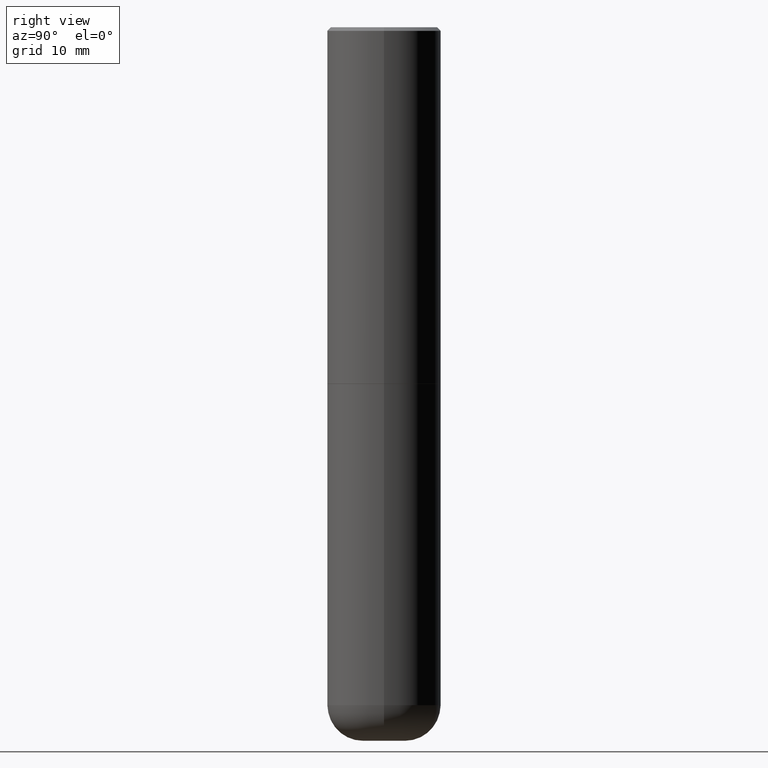
[diagram: clean part render]
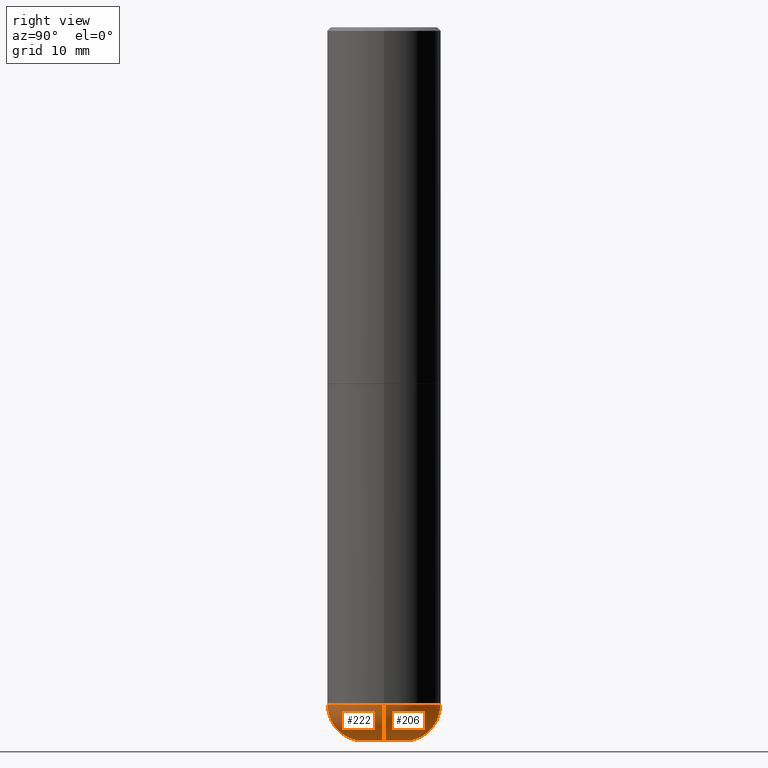
[diagram: same view with one multi-face feature highlighted, each face labeled with its STEP entity id]
A machine part, right view. The highlighted faces form ONE feature: a constant-radius fillet chain: 2 tangent blend faces with common blend radius 5.0013 mm. The faces share edges in the B-rep.
Their STEP definitions:
[1] entity #206 (Torus):
#11 = CARTESIAN_POINT ( 'NONE',  ( -0.1180500000000000438, -1.186390067029574163E-14, -3.937000000000000277 ) ) ;
#14 = CARTESIAN_POINT ( 'NONE',  ( 0.1180500000000000160, -1.388282809950811403E-14, -3.740100000000000424 ) ) ;
#33 = VERTEX_POINT ( 'NONE', #392 ) ;
#54 = ORIENTED_EDGE ( 'NONE', *, *, #179, .T. ) ;
#64 = ORIENTED_EDGE ( 'NONE', *, *, #87, .T. ) ;
#86 = VERTEX_POINT ( 'NONE', #11 ) ;
#87 = EDGE_CURVE ( 'NONE', #86, #33, #101, .T. ) ;
#91 = EDGE_CURVE ( 'NONE', #153, #242, #122, .T. ) ;
#101 = CIRCLE ( 'NONE', #344, 0.1968999999999998529 ) ;
#103 = DIRECTION ( 'NONE',  ( -1.000000000000000000, 7.105427357600997914E-15, 0.000000000000000000 ) ) ;
#106 = DIRECTION ( 'NONE',  ( 1.000000000000000000, -6.982962677686270655E-15, 0.000000000000000000 ) ) ;
#112 = DIRECTION ( 'NONE',  ( 1.000000000000000000, -6.982962677686266711E-15, 4.883557194083112901E-29 ) ) ;
#120 = CARTESIAN_POINT ( 'NONE',  ( 9.146297882013029477E-29, -1.305848935540725085E-14, -3.740100000000000424 ) ) ;
#122 = CIRCLE ( 'NONE', #145, 0.1968999999999998529 ) ;
#129 = EDGE_LOOP ( 'NONE', ( #54, #64, #189, #355 ) ) ;
#135 = CARTESIAN_POINT ( 'NONE',  ( -0.1180500000000000160, -1.221969365584245109E-14, -3.740100000000000424 ) ) ;
#138 = DIRECTION ( 'NONE',  ( -6.982962677686266711E-15, -1.000000000000000000, 3.491481338843145583E-15 ) ) ;
#145 = AXIS2_PLACEMENT_3D ( 'NONE', #14, #138, #106 ) ;
#153 = VERTEX_POINT ( 'NONE', #181 ) ;
#173 = CARTESIAN_POINT ( 'NONE',  ( 9.146297882013029477E-29, -1.305848935540725085E-14, -3.740100000000000424 ) ) ;
#179 = EDGE_CURVE ( 'NONE', #153, #86, #368, .T. ) ;
#181 = CARTESIAN_POINT ( 'NONE',  ( 0.1180500000000000438, -1.457030077512632659E-14, -3.937000000000000277 ) ) ;
#189 = ORIENTED_EDGE ( 'NONE', *, *, #318, .F. ) ;
#202 = TOROIDAL_SURFACE ( 'NONE', #304, 0.1180500000000000160, 0.1968999999999998807 ) ;
#206 = ADVANCED_FACE ( 'NONE', ( #401 ), #202, .T. ) ;
#242 = VERTEX_POINT ( 'NONE', #375 ) ;
#297 = AXIS2_PLACEMENT_3D ( 'NONE', #402, #346, #345 ) ;
#304 = AXIS2_PLACEMENT_3D ( 'NONE', #173, #407, #112 ) ;
#318 = EDGE_CURVE ( 'NONE', #242, #33, #400, .T. ) ;
#319 = DIRECTION ( 'NONE',  ( -2.445468806185136597E-29, 3.491481338843145583E-15, 1.000000000000000000 ) ) ;
#338 = AXIS2_PLACEMENT_3D ( 'NONE', #120, #319, #352 ) ;
#344 = AXIS2_PLACEMENT_3D ( 'NONE', #135, #397, #103 ) ;
#345 = DIRECTION ( 'NONE',  ( 1.000000000000000000, -6.982962677686258822E-15, 0.000000000000000000 ) ) ;
#346 = DIRECTION ( 'NONE',  ( -2.445468806185136597E-29, 3.491481338843145583E-15, 1.000000000000000000 ) ) ;
#352 = DIRECTION ( 'NONE',  ( 1.000000000000000000, -6.982962677686263555E-15, 0.000000000000000000 ) ) ;
#355 = ORIENTED_EDGE ( 'NONE', *, *, #91, .F. ) ;
#368 = CIRCLE ( 'NONE', #297, 0.1180500000000000438 ) ;
#375 = CARTESIAN_POINT ( 'NONE',  ( 0.3149499999999999522, -1.525777345074454073E-14, -3.740100000000000424 ) ) ;
#392 = CARTESIAN_POINT ( 'NONE',  ( -0.3149499999999999522, -1.082063500913081645E-14, -3.740100000000000424 ) ) ;
#397 = DIRECTION ( 'NONE',  ( 7.105427357601001859E-15, 1.000000000000000000, -3.491481338843145583E-15 ) ) ;
#400 = CIRCLE ( 'NONE', #338, 0.3149500000000000077 ) ;
#401 = FACE_OUTER_BOUND ( 'NONE', #129, .T. ) ;
#402 = CARTESIAN_POINT ( 'NONE',  ( 9.627810689950883669E-29, -1.374596203102546341E-14, -3.937000000000000277 ) ) ;
#407 = DIRECTION ( 'NONE',  ( -2.445468806185136597E-29, 3.491481338843145583E-15, 1.000000000000000000 ) ) ;
[2] entity #222 (Torus):
#11 = CARTESIAN_POINT ( 'NONE',  ( -0.1180500000000000438, -1.186390067029574163E-14, -3.937000000000000277 ) ) ;
#14 = CARTESIAN_POINT ( 'NONE',  ( 0.1180500000000000160, -1.388282809950811403E-14, -3.740100000000000424 ) ) ;
#24 = EDGE_CURVE ( 'NONE', #86, #153, #233, .T. ) ;
#25 = CARTESIAN_POINT ( 'NONE',  ( 9.146297882013029477E-29, -1.305848935540725085E-14, -3.740100000000000424 ) ) ;
#26 = EDGE_LOOP ( 'NONE', ( #150, #160, #295, #218 ) ) ;
#33 = VERTEX_POINT ( 'NONE', #392 ) ;
#36 = AXIS2_PLACEMENT_3D ( 'NONE', #25, #379, #183 ) ;
#50 = CARTESIAN_POINT ( 'NONE',  ( 9.146297882013029477E-29, -1.305848935540725085E-14, -3.740100000000000424 ) ) ;
#86 = VERTEX_POINT ( 'NONE', #11 ) ;
#87 = EDGE_CURVE ( 'NONE', #86, #33, #101, .T. ) ;
#91 = EDGE_CURVE ( 'NONE', #153, #242, #122, .T. ) ;
#101 = CIRCLE ( 'NONE', #344, 0.1968999999999998529 ) ;
#103 = DIRECTION ( 'NONE',  ( -1.000000000000000000, 7.105427357600997914E-15, 0.000000000000000000 ) ) ;
#106 = DIRECTION ( 'NONE',  ( 1.000000000000000000, -6.982962677686270655E-15, 0.000000000000000000 ) ) ;
#113 = DIRECTION ( 'NONE',  ( 1.000000000000000000, -6.982962677686266711E-15, 4.883557194083112901E-29 ) ) ;
#122 = CIRCLE ( 'NONE', #145, 0.1968999999999998529 ) ;
#131 = CARTESIAN_POINT ( 'NONE',  ( 9.627810689950883669E-29, -1.374596203102546341E-14, -3.937000000000000277 ) ) ;
#135 = CARTESIAN_POINT ( 'NONE',  ( -0.1180500000000000160, -1.221969365584245109E-14, -3.740100000000000424 ) ) ;
#138 = DIRECTION ( 'NONE',  ( -6.982962677686266711E-15, -1.000000000000000000, 3.491481338843145583E-15 ) ) ;
#145 = AXIS2_PLACEMENT_3D ( 'NONE', #14, #138, #106 ) ;
#150 = ORIENTED_EDGE ( 'NONE', *, *, #87, .F. ) ;
#153 = VERTEX_POINT ( 'NONE', #181 ) ;
#160 = ORIENTED_EDGE ( 'NONE', *, *, #24, .T. ) ;
#181 = CARTESIAN_POINT ( 'NONE',  ( 0.1180500000000000438, -1.457030077512632659E-14, -3.937000000000000277 ) ) ;
#183 = DIRECTION ( 'NONE',  ( 1.000000000000000000, -6.982962677686263555E-15, 0.000000000000000000 ) ) ;
#187 = AXIS2_PLACEMENT_3D ( 'NONE', #50, #313, #113 ) ;
#218 = ORIENTED_EDGE ( 'NONE', *, *, #361, .F. ) ;
#222 = ADVANCED_FACE ( 'NONE', ( #244 ), #349, .T. ) ;
#233 = CIRCLE ( 'NONE', #315, 0.1180500000000000438 ) ;
#241 = CIRCLE ( 'NONE', #36, 0.3149500000000000077 ) ;
#242 = VERTEX_POINT ( 'NONE', #375 ) ;
#244 = FACE_OUTER_BOUND ( 'NONE', #26, .T. ) ;
#266 = DIRECTION ( 'NONE',  ( -2.445468806185136597E-29, 3.491481338843145583E-15, 1.000000000000000000 ) ) ;
#295 = ORIENTED_EDGE ( 'NONE', *, *, #91, .T. ) ;
#313 = DIRECTION ( 'NONE',  ( -2.445468806185136597E-29, 3.491481338843145583E-15, 1.000000000000000000 ) ) ;
#315 = AXIS2_PLACEMENT_3D ( 'NONE', #131, #266, #394 ) ;
#344 = AXIS2_PLACEMENT_3D ( 'NONE', #135, #397, #103 ) ;
#349 = TOROIDAL_SURFACE ( 'NONE', #187, 0.1180500000000000160, 0.1968999999999998807 ) ;
#361 = EDGE_CURVE ( 'NONE', #33, #242, #241, .T. ) ;
#375 = CARTESIAN_POINT ( 'NONE',  ( 0.3149499999999999522, -1.525777345074454073E-14, -3.740100000000000424 ) ) ;
#379 = DIRECTION ( 'NONE',  ( -2.445468806185136597E-29, 3.491481338843145583E-15, 1.000000000000000000 ) ) ;
#392 = CARTESIAN_POINT ( 'NONE',  ( -0.3149499999999999522, -1.082063500913081645E-14, -3.740100000000000424 ) ) ;
#394 = DIRECTION ( 'NONE',  ( 1.000000000000000000, -6.982962677686258822E-15, 0.000000000000000000 ) ) ;
#397 = DIRECTION ( 'NONE',  ( 7.105427357601001859E-15, 1.000000000000000000, -3.491481338843145583E-15 ) ) ;